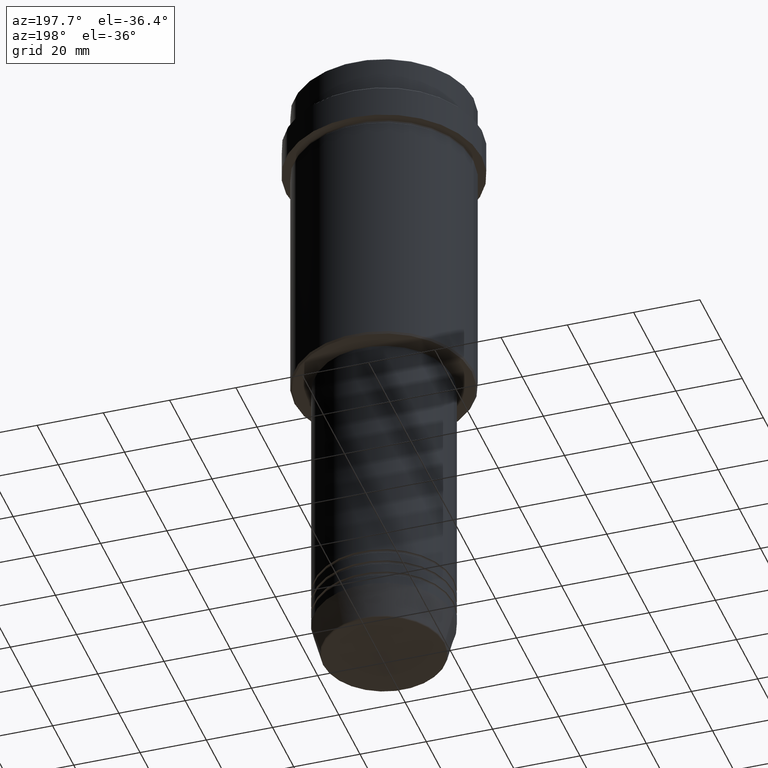
[diagram: clean part render]
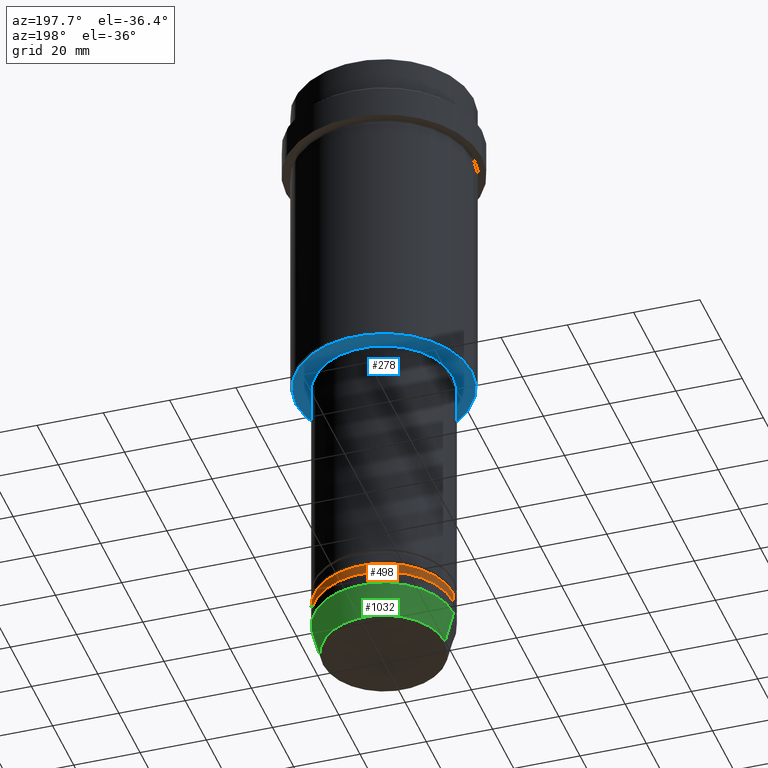
[diagram: same view with three faces highlighted in distinct colors, each labeled with its STEP entity id]
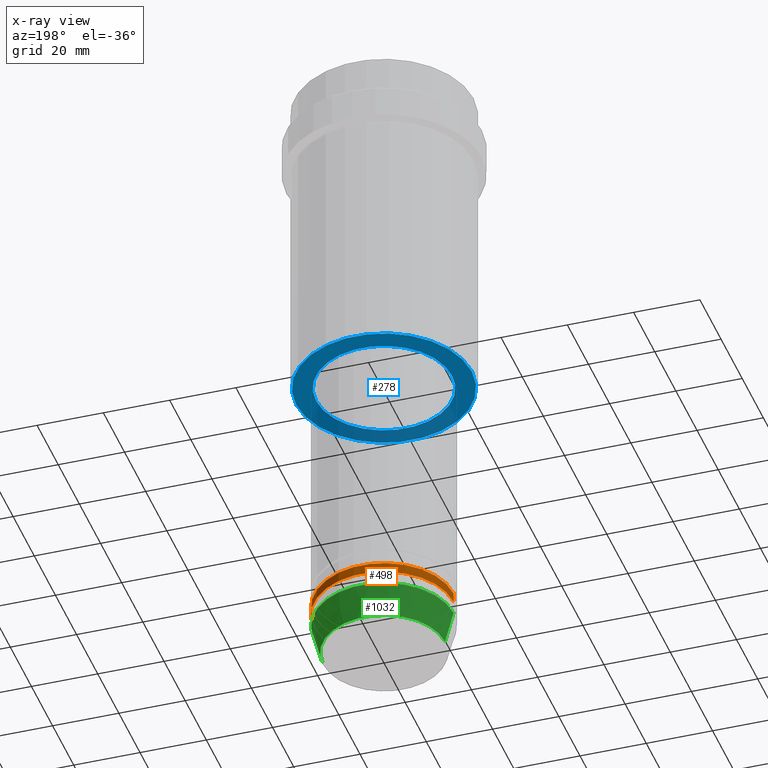
[diagram: x-ray of the same camera — body ghosted, the three highlighted faces saturated]
A machine part, auxiliary view with three faces highlighted in distinct colors.
The next image is the same camera in x-ray (body ghosted, the three faces saturated) — at least one of them is partly hidden behind the body in this view.
Their STEP definitions:

[orange] entity #498 — the highlighted cylindrical surface (partial cylindrical patch) has radius 21 mm, axis along (-0, -0, 1).
#5 = CARTESIAN_POINT ( 'NONE',  ( 0.000000000000000000, 0.000000000000000000, 0.000000000000000000 ) ) ;
#10 = DIRECTION ( 'NONE',  ( -0.000000000000000000, -0.000000000000000000, 1.000000000000000000 ) ) ;
#191 = EDGE_CURVE ( 'NONE', #943, #1234, #361, .T. ) ;
#214 = AXIS2_PLACEMENT_3D ( 'NONE', #527, #639, #1153 ) ;
#259 = CARTESIAN_POINT ( 'NONE',  ( 0.000000000000000000, 0.000000000000000000, -178.9999999999998863 ) ) ;
#273 = DIRECTION ( 'NONE',  ( -0.000000000000000000, -0.000000000000000000, 1.000000000000000000 ) ) ;
#307 = CARTESIAN_POINT ( 'NONE',  ( 21.00000000000000000, 0.000000000000000000, -175.9999999999998863 ) ) ;
#320 = FACE_OUTER_BOUND ( 'NONE', #593, .T. ) ;
#340 = CARTESIAN_POINT ( 'NONE',  ( 21.00000000000000000, 0.000000000000000000, -178.9999999999998863 ) ) ;
#341 = CARTESIAN_POINT ( 'NONE',  ( -21.00000000000000000, 2.571758278209441661E-15, 0.000000000000000000 ) ) ;
#361 = LINE ( 'NONE', #1332, #589 ) ;
#409 = VERTEX_POINT ( 'NONE', #950 ) ;
#426 = DIRECTION ( 'NONE',  ( 1.000000000000000000, 0.000000000000000000, 0.000000000000000000 ) ) ;
#491 = DIRECTION ( 'NONE',  ( -0.000000000000000000, -0.000000000000000000, 1.000000000000000000 ) ) ;
#498 = ADVANCED_FACE ( 'NONE', ( #320 ), #552, .T. ) ;
#513 = EDGE_CURVE ( 'NONE', #636, #409, #653, .T. ) ;
#527 = CARTESIAN_POINT ( 'NONE',  ( 0.000000000000000000, 0.000000000000000000, -175.9999999999998863 ) ) ;
#552 = CYLINDRICAL_SURFACE ( 'NONE', #817, 21.00000000000000000 ) ;
#566 = AXIS2_PLACEMENT_3D ( 'NONE', #259, #491, #695 ) ;
#589 = VECTOR ( 'NONE', #273, 1000.000000000000000 ) ;
#593 = EDGE_LOOP ( 'NONE', ( #622, #1075, #1199, #1028 ) ) ;
#622 = ORIENTED_EDGE ( 'NONE', *, *, #629, .T. ) ;
#629 = EDGE_CURVE ( 'NONE', #943, #636, #1315, .T. ) ;
#636 = VERTEX_POINT ( 'NONE', #826 ) ;
#639 = DIRECTION ( 'NONE',  ( -0.000000000000000000, -0.000000000000000000, 1.000000000000000000 ) ) ;
#653 = LINE ( 'NONE', #341, #1408 ) ;
#695 = DIRECTION ( 'NONE',  ( 1.000000000000000000, 0.000000000000000000, 0.000000000000000000 ) ) ;
#817 = AXIS2_PLACEMENT_3D ( 'NONE', #5, #878, #426 ) ;
#826 = CARTESIAN_POINT ( 'NONE',  ( -21.00000000000000000, 2.571758278209441661E-15, -178.9999999999998863 ) ) ;
#840 = EDGE_CURVE ( 'NONE', #1234, #409, #841, .T. ) ;
#841 = CIRCLE ( 'NONE', #214, 21.00000000000000000 ) ;
#878 = DIRECTION ( 'NONE',  ( -0.000000000000000000, -0.000000000000000000, 1.000000000000000000 ) ) ;
#943 = VERTEX_POINT ( 'NONE', #340 ) ;
#950 = CARTESIAN_POINT ( 'NONE',  ( -21.00000000000000000, 2.571758278209441661E-15, -175.9999999999998863 ) ) ;
#1028 = ORIENTED_EDGE ( 'NONE', *, *, #191, .F. ) ;
#1075 = ORIENTED_EDGE ( 'NONE', *, *, #513, .T. ) ;
#1153 = DIRECTION ( 'NONE',  ( 1.000000000000000000, 0.000000000000000000, 0.000000000000000000 ) ) ;
#1199 = ORIENTED_EDGE ( 'NONE', *, *, #840, .F. ) ;
#1234 = VERTEX_POINT ( 'NONE', #307 ) ;
#1315 = CIRCLE ( 'NONE', #566, 21.00000000000000000 ) ;
#1332 = CARTESIAN_POINT ( 'NONE',  ( 21.00000000000000000, 0.000000000000000000, 0.000000000000000000 ) ) ;
#1408 = VECTOR ( 'NONE', #10, 1000.000000000000000 ) ;

[blue] entity #278 — the highlighted planar face has unit normal (0, 0, -1).
#17 = CIRCLE ( 'NONE', #520, 26.49999999999999645 ) ;
#44 = DIRECTION ( 'NONE',  ( 0.000000000000000000, 0.000000000000000000, -1.000000000000000000 ) ) ;
#55 = FACE_BOUND ( 'NONE', #960, .T. ) ;
#64 = CARTESIAN_POINT ( 'NONE',  ( 0.000000000000000000, 27.00000000000000355, -97.99999999999997158 ) ) ;
#77 = ORIENTED_EDGE ( 'NONE', *, *, #344, .T. ) ;
#103 = CIRCLE ( 'NONE', #564, 20.49999999999999289 ) ;
#111 = ORIENTED_EDGE ( 'NONE', *, *, #1316, .T. ) ;
#155 = FACE_OUTER_BOUND ( 'NONE', #1120, .T. ) ;
#204 = CARTESIAN_POINT ( 'NONE',  ( 0.000000000000000000, 0.000000000000000000, -97.99999999999997158 ) ) ;
#278 = ADVANCED_FACE ( 'NONE', ( #155, #55 ), #714, .T. ) ;
#282 = CARTESIAN_POINT ( 'NONE',  ( 20.49999999999999289, 0.000000000000000000, -97.99999999999997158 ) ) ;
#292 = CARTESIAN_POINT ( 'NONE',  ( -20.49999999999999289, 2.510525938252073298E-15, -97.99999999999997158 ) ) ;
#305 = DIRECTION ( 'NONE',  ( -0.000000000000000000, -0.000000000000000000, 1.000000000000000000 ) ) ;
#310 = EDGE_CURVE ( 'NONE', #1069, #1167, #1154, .T. ) ;
#344 = EDGE_CURVE ( 'NONE', #1367, #812, #103, .T. ) ;
#404 = AXIS2_PLACEMENT_3D ( 'NONE', #1370, #748, #717 ) ;
#406 = DIRECTION ( 'NONE',  ( 1.000000000000000000, 0.000000000000000000, 0.000000000000000000 ) ) ;
#520 = AXIS2_PLACEMENT_3D ( 'NONE', #204, #563, #1093 ) ;
#528 = DIRECTION ( 'NONE',  ( -1.000000000000000000, 0.000000000000000000, 0.000000000000000000 ) ) ;
#563 = DIRECTION ( 'NONE',  ( 0.000000000000000000, 0.000000000000000000, -1.000000000000000000 ) ) ;
#564 = AXIS2_PLACEMENT_3D ( 'NONE', #1288, #305, #406 ) ;
#580 = ORIENTED_EDGE ( 'NONE', *, *, #1001, .T. ) ;
#714 = PLANE ( 'NONE',  #839 ) ;
#717 = DIRECTION ( 'NONE',  ( 1.000000000000000000, 0.000000000000000000, 0.000000000000000000 ) ) ;
#748 = DIRECTION ( 'NONE',  ( -0.000000000000000000, -0.000000000000000000, 1.000000000000000000 ) ) ;
#812 = VERTEX_POINT ( 'NONE', #292 ) ;
#839 = AXIS2_PLACEMENT_3D ( 'NONE', #64, #44, #1342 ) ;
#960 = EDGE_LOOP ( 'NONE', ( #77, #111 ) ) ;
#976 = CIRCLE ( 'NONE', #404, 20.49999999999999289 ) ;
#1001 = EDGE_CURVE ( 'NONE', #1167, #1069, #17, .T. ) ;
#1069 = VERTEX_POINT ( 'NONE', #1123 ) ;
#1093 = DIRECTION ( 'NONE',  ( -1.000000000000000000, 0.000000000000000000, 0.000000000000000000 ) ) ;
#1106 = CARTESIAN_POINT ( 'NONE',  ( -26.49999999999999645, 3.275930187719169552E-15, -97.99999999999997158 ) ) ;
#1120 = EDGE_LOOP ( 'NONE', ( #1396, #580 ) ) ;
#1123 = CARTESIAN_POINT ( 'NONE',  ( 26.49999999999999645, 0.000000000000000000, -97.99999999999997158 ) ) ;
#1125 = CARTESIAN_POINT ( 'NONE',  ( 0.000000000000000000, 0.000000000000000000, -97.99999999999997158 ) ) ;
#1154 = CIRCLE ( 'NONE', #1334, 26.49999999999999645 ) ;
#1167 = VERTEX_POINT ( 'NONE', #1106 ) ;
#1263 = DIRECTION ( 'NONE',  ( 0.000000000000000000, 0.000000000000000000, -1.000000000000000000 ) ) ;
#1288 = CARTESIAN_POINT ( 'NONE',  ( 0.000000000000000000, 0.000000000000000000, -97.99999999999997158 ) ) ;
#1316 = EDGE_CURVE ( 'NONE', #812, #1367, #976, .T. ) ;
#1334 = AXIS2_PLACEMENT_3D ( 'NONE', #1125, #1263, #528 ) ;
#1342 = DIRECTION ( 'NONE',  ( -1.000000000000000000, 0.000000000000000000, -0.000000000000000000 ) ) ;
#1367 = VERTEX_POINT ( 'NONE', #282 ) ;
#1370 = CARTESIAN_POINT ( 'NONE',  ( 0.000000000000000000, 0.000000000000000000, -97.99999999999997158 ) ) ;
#1396 = ORIENTED_EDGE ( 'NONE', *, *, #310, .T. ) ;

[green] entity #1032 — the highlighted conical surface has half-angle 15 deg.
#63 = AXIS2_PLACEMENT_3D ( 'NONE', #186, #1283, #1410 ) ;
#113 = CARTESIAN_POINT ( 'NONE',  ( -21.00000000000000000, 2.571758278209441661E-15, -183.0000000000000000 ) ) ;
#176 = EDGE_LOOP ( 'NONE', ( #1046, #1190, #450, #275 ) ) ;
#186 = CARTESIAN_POINT ( 'NONE',  ( 0.000000000000000000, 0.000000000000000000, -192.6294095225512422 ) ) ;
#195 = CARTESIAN_POINT ( 'NONE',  ( 21.00000000000000000, 0.000000000000000000, -183.0000000000000000 ) ) ;
#202 = VERTEX_POINT ( 'NONE', #1348 ) ;
#221 = DIRECTION ( 'NONE',  ( 1.000000000000000000, 0.000000000000000000, 0.000000000000000000 ) ) ;
#275 = ORIENTED_EDGE ( 'NONE', *, *, #1386, .F. ) ;
#309 = CIRCLE ( 'NONE', #993, 21.00000000000000000 ) ;
#319 = CARTESIAN_POINT ( 'NONE',  ( 0.000000000000000000, 0.000000000000000000, -183.0000000000000000 ) ) ;
#339 = VERTEX_POINT ( 'NONE', #1385 ) ;
#351 = EDGE_CURVE ( 'NONE', #202, #1002, #745, .T. ) ;
#411 = DIRECTION ( 'NONE',  ( 1.000000000000000000, 0.000000000000000000, 0.000000000000000000 ) ) ;
#422 = EDGE_CURVE ( 'NONE', #1329, #1002, #309, .T. ) ;
#450 = ORIENTED_EDGE ( 'NONE', *, *, #422, .F. ) ;
#522 = CARTESIAN_POINT ( 'NONE',  ( 0.000000000000000000, 0.000000000000000000, -183.0000000000000000 ) ) ;
#638 = AXIS2_PLACEMENT_3D ( 'NONE', #319, #871, #221 ) ;
#686 = VECTOR ( 'NONE', #991, 1000.000000000000114 ) ;
#745 = LINE ( 'NONE', #845, #749 ) ;
#749 = VECTOR ( 'NONE', #1372, 1000.000000000000114 ) ;
#774 = CIRCLE ( 'NONE', #63, 18.41980749484382329 ) ;
#845 = CARTESIAN_POINT ( 'NONE',  ( -21.00000000000000000, 2.571758278209441661E-15, -183.0000000000000000 ) ) ;
#871 = DIRECTION ( 'NONE',  ( -0.000000000000000000, -0.000000000000000000, 1.000000000000000000 ) ) ;
#991 = DIRECTION ( 'NONE',  ( 0.2588190451025205729, 0.000000000000000000, 0.9659258262890683122 ) ) ;
#993 = AXIS2_PLACEMENT_3D ( 'NONE', #522, #1045, #411 ) ;
#1002 = VERTEX_POINT ( 'NONE', #113 ) ;
#1032 = ADVANCED_FACE ( 'NONE', ( #1415 ), #1248, .T. ) ;
#1045 = DIRECTION ( 'NONE',  ( -0.000000000000000000, -0.000000000000000000, 1.000000000000000000 ) ) ;
#1046 = ORIENTED_EDGE ( 'NONE', *, *, #1304, .T. ) ;
#1090 = CARTESIAN_POINT ( 'NONE',  ( 21.00000000000000000, 0.000000000000000000, -183.0000000000000000 ) ) ;
#1168 = LINE ( 'NONE', #1090, #686 ) ;
#1190 = ORIENTED_EDGE ( 'NONE', *, *, #351, .T. ) ;
#1248 = CONICAL_SURFACE ( 'NONE', #638, 21.00000000000000000, 0.2617993877991492413 ) ;
#1283 = DIRECTION ( 'NONE',  ( -0.000000000000000000, -0.000000000000000000, 1.000000000000000000 ) ) ;
#1304 = EDGE_CURVE ( 'NONE', #339, #202, #774, .T. ) ;
#1329 = VERTEX_POINT ( 'NONE', #195 ) ;
#1348 = CARTESIAN_POINT ( 'NONE',  ( -18.41980749484382329, 2.413767053578266669E-15, -192.6294095225512422 ) ) ;
#1372 = DIRECTION ( 'NONE',  ( -0.2588190451025205729, 3.169619151431761860E-17, 0.9659258262890683122 ) ) ;
#1385 = CARTESIAN_POINT ( 'NONE',  ( 18.41980749484382329, 0.000000000000000000, -192.6294095225512422 ) ) ;
#1386 = EDGE_CURVE ( 'NONE', #339, #1329, #1168, .T. ) ;
#1410 = DIRECTION ( 'NONE',  ( 1.000000000000000000, 0.000000000000000000, 0.000000000000000000 ) ) ;
#1415 = FACE_OUTER_BOUND ( 'NONE', #176, .T. ) ;